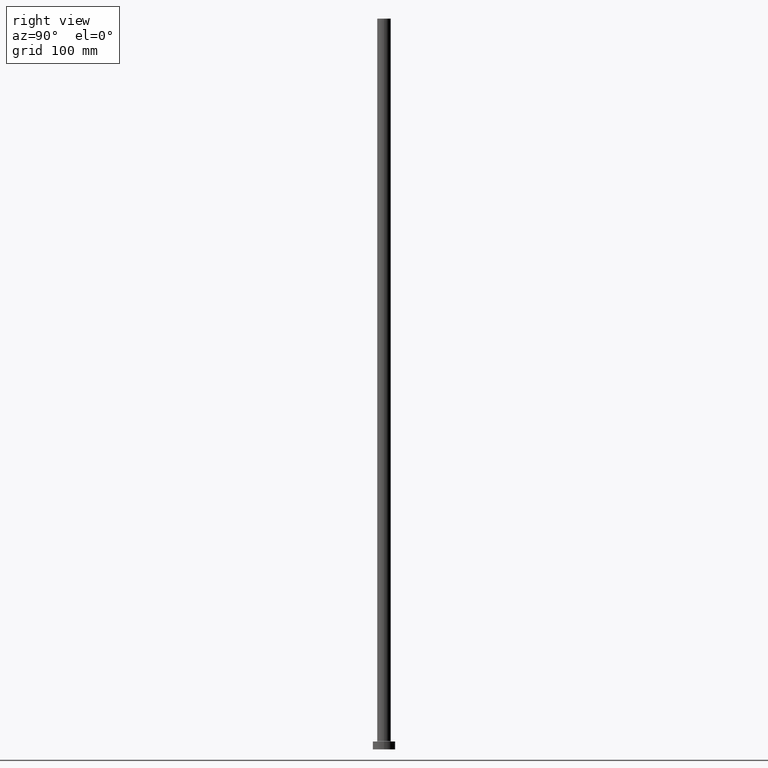
[diagram: clean part render]
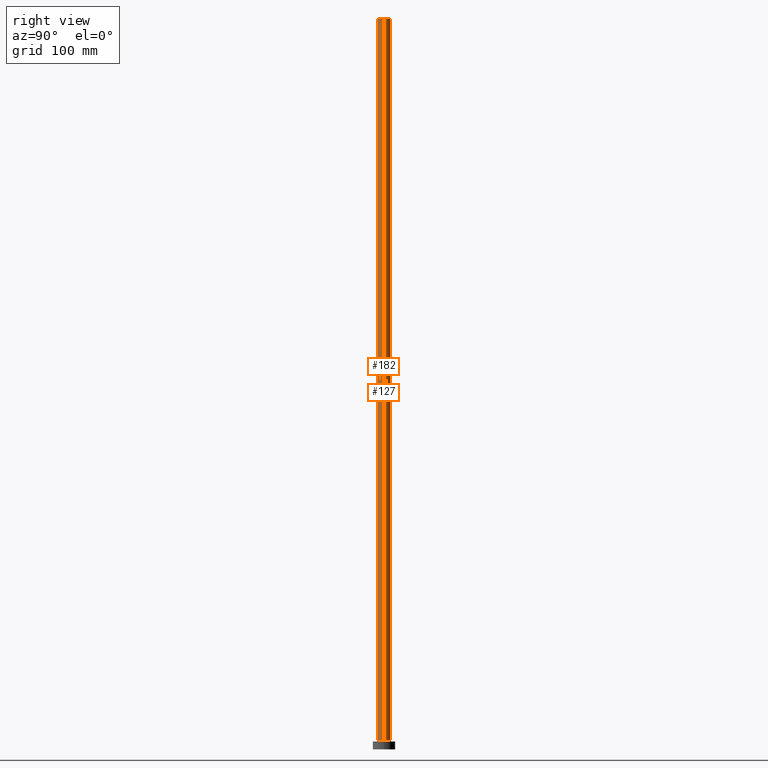
[diagram: same view with one multi-face feature highlighted, each face labeled with its STEP entity id]
A machine part, right view. The highlighted faces form ONE feature: a constant-radius fillet chain: 2 tangent blend faces with common blend radius 6 mm. The faces share edges in the B-rep.
Their STEP definitions:
[1] entity #182 (Cylinder):
#2 = CYLINDRICAL_SURFACE ( 'NONE', #304, 6.000000000000000888 ) ;
#6 = CARTESIAN_POINT ( 'NONE',  ( 0.000000000000000000, 0.000000000000000000, 650.0000000000000000 ) ) ;
#9 = CARTESIAN_POINT ( 'NONE',  ( 0.000000000000000000, 0.000000000000000000, 650.0000000000000000 ) ) ;
#40 = CARTESIAN_POINT ( 'NONE',  ( -6.000000000000000888, 0.000000000000000000, 650.0000000000000000 ) ) ;
#42 = DIRECTION ( 'NONE',  ( 0.000000000000000000, 0.000000000000000000, 1.000000000000000000 ) ) ;
#47 = DIRECTION ( 'NONE',  ( -0.000000000000000000, -0.000000000000000000, -1.000000000000000000 ) ) ;
#67 = CARTESIAN_POINT ( 'NONE',  ( 6.000000000000000888, 7.347880794884120722E-16, 7.700000000000040146 ) ) ;
#77 = DIRECTION ( 'NONE',  ( 1.000000000000000000, 0.000000000000000000, 0.000000000000000000 ) ) ;
#88 = VERTEX_POINT ( 'NONE', #125 ) ;
#106 = CARTESIAN_POINT ( 'NONE',  ( 6.000000000000000888, 7.347880794884120722E-16, 650.0000000000000000 ) ) ;
#112 = VECTOR ( 'NONE', #368, 1000.000000000000000 ) ;
#115 = ORIENTED_EDGE ( 'NONE', *, *, #438, .F. ) ;
#125 = CARTESIAN_POINT ( 'NONE',  ( -6.000000000000000888, 0.000000000000000000, 7.700000000000040146 ) ) ;
#149 = DIRECTION ( 'NONE',  ( 1.000000000000000000, 0.000000000000000000, 0.000000000000000000 ) ) ;
#167 = ORIENTED_EDGE ( 'NONE', *, *, #250, .T. ) ;
#173 = CIRCLE ( 'NONE', #218, 6.000000000000000888 ) ;
#182 = ADVANCED_FACE ( 'NONE', ( #318 ), #2, .T. ) ;
#197 = CARTESIAN_POINT ( 'NONE',  ( 6.000000000000000888, 7.347880794884120722E-16, 650.0000000000000000 ) ) ;
#205 = VECTOR ( 'NONE', #47, 1000.000000000000000 ) ;
#217 = CARTESIAN_POINT ( 'NONE',  ( -6.000000000000000888, 0.000000000000000000, 650.0000000000000000 ) ) ;
#218 = AXIS2_PLACEMENT_3D ( 'NONE', #434, #42, #77 ) ;
#225 = DIRECTION ( 'NONE',  ( 0.000000000000000000, 0.000000000000000000, 1.000000000000000000 ) ) ;
#231 = VERTEX_POINT ( 'NONE', #67 ) ;
#235 = LINE ( 'NONE', #197, #205 ) ;
#250 = EDGE_CURVE ( 'NONE', #88, #231, #173, .T. ) ;
#277 = ORIENTED_EDGE ( 'NONE', *, *, #384, .T. ) ;
#293 = AXIS2_PLACEMENT_3D ( 'NONE', #9, #225, #149 ) ;
#297 = VERTEX_POINT ( 'NONE', #106 ) ;
#300 = EDGE_CURVE ( 'NONE', #338, #297, #437, .T. ) ;
#301 = ORIENTED_EDGE ( 'NONE', *, *, #300, .F. ) ;
#304 = AXIS2_PLACEMENT_3D ( 'NONE', #6, #422, #461 ) ;
#318 = FACE_OUTER_BOUND ( 'NONE', #369, .T. ) ;
#338 = VERTEX_POINT ( 'NONE', #217 ) ;
#368 = DIRECTION ( 'NONE',  ( -0.000000000000000000, -0.000000000000000000, -1.000000000000000000 ) ) ;
#369 = EDGE_LOOP ( 'NONE', ( #115, #301, #277, #167 ) ) ;
#384 = EDGE_CURVE ( 'NONE', #338, #88, #403, .T. ) ;
#403 = LINE ( 'NONE', #40, #112 ) ;
#422 = DIRECTION ( 'NONE',  ( -0.000000000000000000, -0.000000000000000000, -1.000000000000000000 ) ) ;
#434 = CARTESIAN_POINT ( 'NONE',  ( 0.000000000000000000, 0.000000000000000000, 7.700000000000040146 ) ) ;
#437 = CIRCLE ( 'NONE', #293, 6.000000000000000888 ) ;
#438 = EDGE_CURVE ( 'NONE', #297, #231, #235, .T. ) ;
#461 = DIRECTION ( 'NONE',  ( -1.000000000000000000, 0.000000000000000000, 0.000000000000000000 ) ) ;
[2] entity #127 (Cylinder):
#12 = CIRCLE ( 'NONE', #187, 6.000000000000000888 ) ;
#15 = CIRCLE ( 'NONE', #133, 6.000000000000000888 ) ;
#27 = DIRECTION ( 'NONE',  ( -0.000000000000000000, -0.000000000000000000, -1.000000000000000000 ) ) ;
#40 = CARTESIAN_POINT ( 'NONE',  ( -6.000000000000000888, 0.000000000000000000, 650.0000000000000000 ) ) ;
#47 = DIRECTION ( 'NONE',  ( -0.000000000000000000, -0.000000000000000000, -1.000000000000000000 ) ) ;
#67 = CARTESIAN_POINT ( 'NONE',  ( 6.000000000000000888, 7.347880794884120722E-16, 7.700000000000040146 ) ) ;
#88 = VERTEX_POINT ( 'NONE', #125 ) ;
#106 = CARTESIAN_POINT ( 'NONE',  ( 6.000000000000000888, 7.347880794884120722E-16, 650.0000000000000000 ) ) ;
#107 = ORIENTED_EDGE ( 'NONE', *, *, #353, .F. ) ;
#112 = VECTOR ( 'NONE', #368, 1000.000000000000000 ) ;
#125 = CARTESIAN_POINT ( 'NONE',  ( -6.000000000000000888, 0.000000000000000000, 7.700000000000040146 ) ) ;
#127 = ADVANCED_FACE ( 'NONE', ( #215 ), #284, .T. ) ;
#133 = AXIS2_PLACEMENT_3D ( 'NONE', #406, #398, #223 ) ;
#176 = ORIENTED_EDGE ( 'NONE', *, *, #269, .T. ) ;
#179 = ORIENTED_EDGE ( 'NONE', *, *, #384, .F. ) ;
#185 = DIRECTION ( 'NONE',  ( 1.000000000000000000, 0.000000000000000000, 0.000000000000000000 ) ) ;
#187 = AXIS2_PLACEMENT_3D ( 'NONE', #364, #371, #185 ) ;
#197 = CARTESIAN_POINT ( 'NONE',  ( 6.000000000000000888, 7.347880794884120722E-16, 650.0000000000000000 ) ) ;
#205 = VECTOR ( 'NONE', #47, 1000.000000000000000 ) ;
#215 = FACE_OUTER_BOUND ( 'NONE', #360, .T. ) ;
#217 = CARTESIAN_POINT ( 'NONE',  ( -6.000000000000000888, 0.000000000000000000, 650.0000000000000000 ) ) ;
#223 = DIRECTION ( 'NONE',  ( 1.000000000000000000, 0.000000000000000000, 0.000000000000000000 ) ) ;
#231 = VERTEX_POINT ( 'NONE', #67 ) ;
#235 = LINE ( 'NONE', #197, #205 ) ;
#264 = ORIENTED_EDGE ( 'NONE', *, *, #438, .T. ) ;
#269 = EDGE_CURVE ( 'NONE', #231, #88, #15, .T. ) ;
#281 = DIRECTION ( 'NONE',  ( -1.000000000000000000, 0.000000000000000000, 0.000000000000000000 ) ) ;
#284 = CYLINDRICAL_SURFACE ( 'NONE', #447, 6.000000000000000888 ) ;
#297 = VERTEX_POINT ( 'NONE', #106 ) ;
#316 = CARTESIAN_POINT ( 'NONE',  ( 0.000000000000000000, 0.000000000000000000, 650.0000000000000000 ) ) ;
#338 = VERTEX_POINT ( 'NONE', #217 ) ;
#353 = EDGE_CURVE ( 'NONE', #297, #338, #12, .T. ) ;
#360 = EDGE_LOOP ( 'NONE', ( #107, #264, #176, #179 ) ) ;
#364 = CARTESIAN_POINT ( 'NONE',  ( 0.000000000000000000, 0.000000000000000000, 650.0000000000000000 ) ) ;
#368 = DIRECTION ( 'NONE',  ( -0.000000000000000000, -0.000000000000000000, -1.000000000000000000 ) ) ;
#371 = DIRECTION ( 'NONE',  ( 0.000000000000000000, 0.000000000000000000, 1.000000000000000000 ) ) ;
#384 = EDGE_CURVE ( 'NONE', #338, #88, #403, .T. ) ;
#398 = DIRECTION ( 'NONE',  ( 0.000000000000000000, 0.000000000000000000, 1.000000000000000000 ) ) ;
#403 = LINE ( 'NONE', #40, #112 ) ;
#406 = CARTESIAN_POINT ( 'NONE',  ( 0.000000000000000000, 0.000000000000000000, 7.700000000000040146 ) ) ;
#438 = EDGE_CURVE ( 'NONE', #297, #231, #235, .T. ) ;
#447 = AXIS2_PLACEMENT_3D ( 'NONE', #316, #27, #281 ) ;